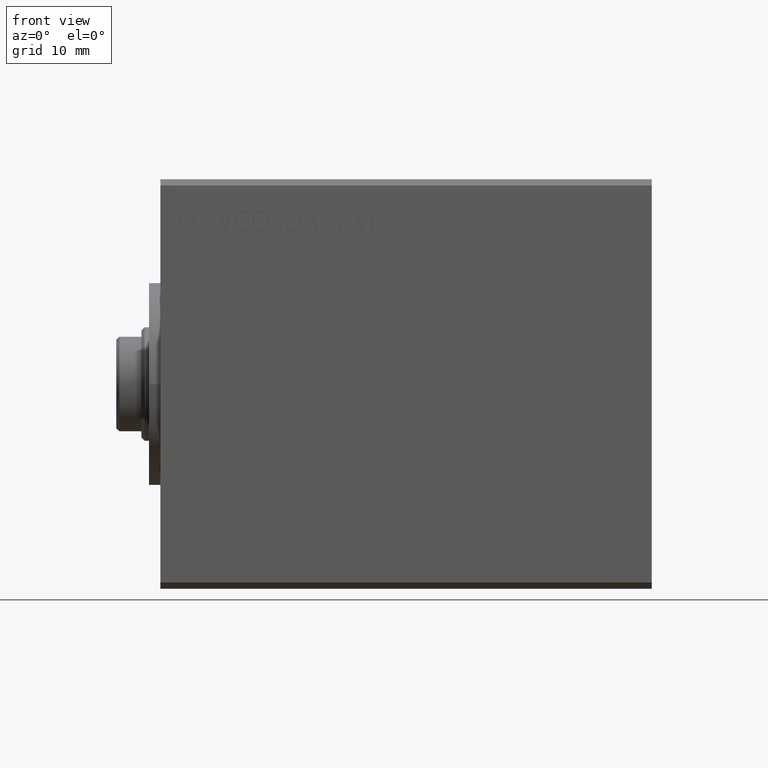
[diagram: clean part render]
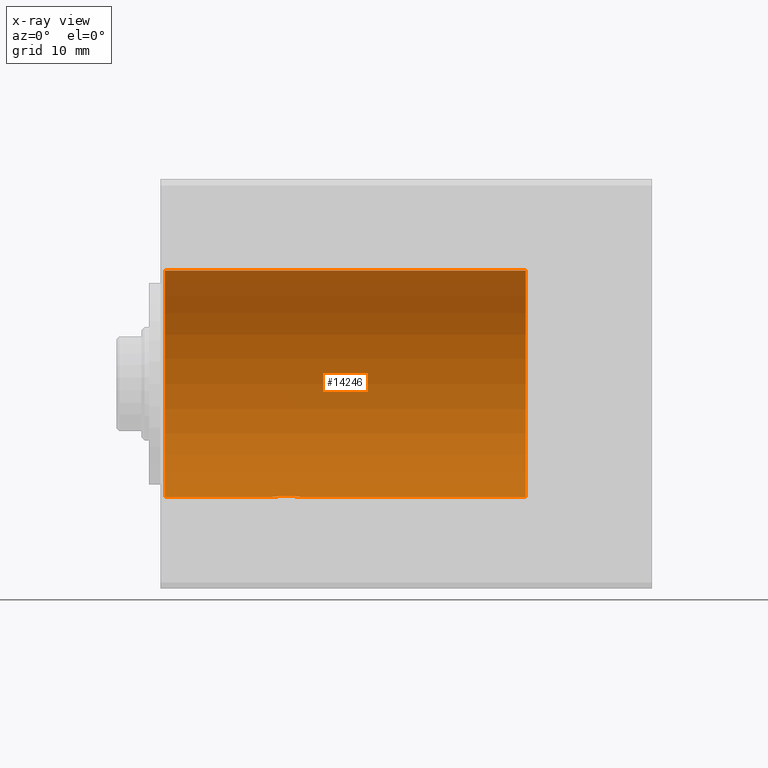
[diagram: x-ray — body ghosted, one internal face saturated and labeled with its STEP entity id]
A machine part, front view, then the same camera in x-ray: the body is ghosted and one INTERNAL B-rep face — a face not visible from any outside direction — is saturated and labeled: STEP entity #14246.
In plain terms, the highlighted cylindrical surface (partial cylindrical patch) has radius 18 mm, axis along (-1, -0, -0).
Its self-contained STEP definition (entity closure, byte-faithful):
#3 = AXIS2_PLACEMENT_3D ( 'NONE', #34715, #3695, #40977 ) ;
#2449 = EDGE_CURVE ( 'NONE', #2757, #35912, #13355, .T. ) ;
#2606 = VECTOR ( 'NONE', #34075, 1000.000000000000000 ) ;
#2691 = VERTEX_POINT ( 'NONE', #36314 ) ;
#2757 = VERTEX_POINT ( 'NONE', #10832 ) ;
#2772 = EDGE_CURVE ( 'NONE', #35912, #2691, #23535, .T. ) ;
#2830 = VECTOR ( 'NONE', #17168, 1000.000000000000000 ) ;
#3527 = CARTESIAN_POINT ( 'NONE',  ( 20.36114966365938628, 2.732113673523619557, -17.79148168512715600 ) ) ;
#3695 = DIRECTION ( 'NONE',  ( -1.000000000000000000, 0.000000000000000000, 0.000000000000000000 ) ) ;
#3702 = B_SPLINE_CURVE_WITH_KNOTS ( 'NONE', 3,
 ( #29438, #43044, #36783, #26091, #36571, #14807, #28428, #39699, #9117, #19621, #36360, #5768, #19415, #11445, #17384, #37455, #33436, #16489, #3527, #20067, #10441, #6870, #41251, #9775, #17166, #26750, #37233, #43923, #6421, #33654, #16716, #40800, #24301, #23847 ),
 .UNSPECIFIED., .F., .F.,
 ( 4, 2, 2, 2, 2, 2, 2, 2, 2, 2, 2, 2, 2, 2, 2, 2, 4 ),
 ( 5.711671780902728217E-19, 0.0005381477574346578505, 0.001076295514869315267, 0.001614443272303972684, 0.002152591029738629667, 0.002690738787173286867, 0.003228886544607944501, 0.003767034302042601701, 0.004305182059477259335, 0.004843329816911916968, 0.005381477574346573735, 0.005919625331781231369, 0.006457773089215889002, 0.006995920846650545769, 0.007534068604085203402, 0.008072216361519859301, 0.008610364118954516935 ),
 .UNSPECIFIED. ) ;
#4515 = ORIENTED_EDGE ( 'NONE', *, *, #17997, .F. ) ;
#4787 = LINE ( 'NONE', #42092, #6030 ) ;
#5768 = CARTESIAN_POINT ( 'NONE',  ( 18.62142115205747217, 2.386358860823109662, -17.84140017713428605 ) ) ;
#5958 = EDGE_CURVE ( 'NONE', #38400, #20330, #3702, .T. ) ;
#6030 = VECTOR ( 'NONE', #28483, 1000.000000000000000 ) ;
#6421 = CARTESIAN_POINT ( 'NONE',  ( 22.47148302953270971, 1.219309543251648531, -17.95942836737981096 ) ) ;
#6670 = VERTEX_POINT ( 'NONE', #42300 ) ;
#6870 = CARTESIAN_POINT ( 'NONE',  ( 21.21890378345132433, 2.471701056507153105, -17.82962573749357205 ) ) ;
#7279 = CARTESIAN_POINT ( 'NONE',  ( 58.00000000000000000, 2.204364238465235033E-15, -18.00000000000000000 ) ) ;
#9117 = CARTESIAN_POINT ( 'NONE',  ( 17.92919909286304048, 1.818341513583773272, -17.90837395452346570 ) ) ;
#9775 = CARTESIAN_POINT ( 'NONE',  ( 21.67719491423088485, 2.186679173985834890, -17.86696660552680527 ) ) ;
#10441 = CARTESIAN_POINT ( 'NONE',  ( 20.88562117720556088, 2.609733257736424061, -17.80994532207485648 ) ) ;
#10832 = CARTESIAN_POINT ( 'NONE',  ( 58.00000000000000000, 0.000000000000000000, 18.00000000000000000 ) ) ;
#10889 = CARTESIAN_POINT ( 'NONE',  ( 58.00000000000000000, 0.000000000000000000, 0.000000000000000000 ) ) ;
#11102 = DIRECTION ( 'NONE',  ( -1.000000000000000000, -0.000000000000000000, -0.000000000000000000 ) ) ;
#11445 = CARTESIAN_POINT ( 'NONE',  ( 19.11193301719066540, 2.608813160784039020, -17.81007848933809257 ) ) ;
#12390 = ORIENTED_EDGE ( 'NONE', *, *, #5958, .T. ) ;
#13126 = CARTESIAN_POINT ( 'NONE',  ( 58.00000000000000000, 0.000000000000000000, 18.00000000000000000 ) ) ;
#13355 = LINE ( 'NONE', #13126, #2830 ) ;
#13548 = LINE ( 'NONE', #7279, #2606 ) ;
#14246 = ADVANCED_FACE ( 'NONE', ( #14689 ), #28086, .F. ) ;
#14689 = FACE_OUTER_BOUND ( 'NONE', #37663, .T. ) ;
#14807 = CARTESIAN_POINT ( 'NONE',  ( 17.52909139156739826, 1.220489038523798087, -17.95934889756896169 ) ) ;
#15544 = ORIENTED_EDGE ( 'NONE', *, *, #30266, .F. ) ;
#16489 = CARTESIAN_POINT ( 'NONE',  ( 20.17862586188583407, 2.750067244739982542, -17.78867983168129641 ) ) ;
#16716 = CARTESIAN_POINT ( 'NONE',  ( 22.66149708591123968, 0.7150711363851948166, -17.98665761577569455 ) ) ;
#17166 = CARTESIAN_POINT ( 'NONE',  ( 21.81633170969228530, 2.072745225415206338, -17.88072528124705229 ) ) ;
#17168 = DIRECTION ( 'NONE',  ( -1.000000000000000000, -0.000000000000000000, -0.000000000000000000 ) ) ;
#17384 = CARTESIAN_POINT ( 'NONE',  ( 19.28554406745295680, 2.661735011242458704, -17.80214719814085100 ) ) ;
#17997 = EDGE_CURVE ( 'NONE', #2757, #6670, #43259, .T. ) ;
#18133 = EDGE_CURVE ( 'NONE', #6670, #20330, #13548, .T. ) ;
#18298 = DIRECTION ( 'NONE',  ( 0.000000000000000000, 0.000000000000000000, 1.000000000000000000 ) ) ;
#19415 = CARTESIAN_POINT ( 'NONE',  ( 18.78109890390195247, 2.471608624310707381, -17.82963692037771963 ) ) ;
#19621 = CARTESIAN_POINT ( 'NONE',  ( 18.18256145699374215, 2.071593444529275629, -17.88084797082229827 ) ) ;
#20067 = CARTESIAN_POINT ( 'NONE',  ( 20.71406291389934751, 2.661764144248994768, -17.80214249234233037 ) ) ;
#20330 = VERTEX_POINT ( 'NONE', #38363 ) ;
#20335 = CARTESIAN_POINT ( 'NONE',  ( 17.24999999999999645, 5.006587671553462360E-16, -18.00000000000000000 ) ) ;
#21642 = CARTESIAN_POINT ( 'NONE',  ( 58.00000000000000000, 0.000000000000000000, 0.000000000000000000 ) ) ;
#22176 = CARTESIAN_POINT ( 'NONE',  ( 0.7000000000000963229, 0.000000000000000000, 18.00000000000000000 ) ) ;
#22474 = ORIENTED_EDGE ( 'NONE', *, *, #2772, .T. ) ;
#23535 = CIRCLE ( 'NONE', #3, 18.00000000000000000 ) ;
#23847 = CARTESIAN_POINT ( 'NONE',  ( 22.74999999999999645, 2.204364158088119303E-15, -18.00000000000000000 ) ) ;
#24301 = CARTESIAN_POINT ( 'NONE',  ( 22.74999999999999289, 0.1796147303005707907, -18.00000000000000000 ) ) ;
#25606 = ORIENTED_EDGE ( 'NONE', *, *, #2449, .T. ) ;
#26091 = CARTESIAN_POINT ( 'NONE',  ( 17.33791835775513945, 0.7127408076138993520, -17.98674456641384722 ) ) ;
#26750 = CARTESIAN_POINT ( 'NONE',  ( 22.07259838126704565, 1.816499270323127080, -17.90857168380059505 ) ) ;
#28086 = CYLINDRICAL_SURFACE ( 'NONE', #30997, 18.00000000000000000 ) ;
#28312 = DIRECTION ( 'NONE',  ( 0.000000000000000000, 0.000000000000000000, 1.000000000000000000 ) ) ;
#28428 = CARTESIAN_POINT ( 'NONE',  ( 17.61359623481490289, 1.378350709743649150, -17.94777491787985824 ) ) ;
#28483 = DIRECTION ( 'NONE',  ( -1.000000000000000000, -0.000000000000000000, -0.000000000000000000 ) ) ;
#29438 = CARTESIAN_POINT ( 'NONE',  ( 17.24999999999999645, 5.006587671553462360E-16, -18.00000000000000000 ) ) ;
#30266 = EDGE_CURVE ( 'NONE', #38400, #2691, #4787, .T. ) ;
#30997 = AXIS2_PLACEMENT_3D ( 'NONE', #10889, #11102, #28312 ) ;
#33436 = CARTESIAN_POINT ( 'NONE',  ( 19.81930959685859861, 2.749932367775400621, -17.78870068266138915 ) ) ;
#33654 = CARTESIAN_POINT ( 'NONE',  ( 22.60941267746853001, 0.8865154291941319542, -17.97892859541724420 ) ) ;
#34075 = DIRECTION ( 'NONE',  ( -1.000000000000000000, -0.000000000000000000, -0.000000000000000000 ) ) ;
#34715 = CARTESIAN_POINT ( 'NONE',  ( 0.7000000000000963229, 0.000000000000000000, 0.000000000000000000 ) ) ;
#35230 = DIRECTION ( 'NONE',  ( -1.000000000000000000, 0.000000000000000000, 0.000000000000000000 ) ) ;
#35847 = ORIENTED_EDGE ( 'NONE', *, *, #18133, .F. ) ;
#35912 = VERTEX_POINT ( 'NONE', #22176 ) ;
#36314 = CARTESIAN_POINT ( 'NONE',  ( 0.7000000000000963229, 2.204364238465235033E-15, -18.00000000000000000 ) ) ;
#36360 = CARTESIAN_POINT ( 'NONE',  ( 18.32085526121134933, 2.185328624903336792, -17.86713764693310935 ) ) ;
#36571 = CARTESIAN_POINT ( 'NONE',  ( 17.39093391971545444, 0.8875567773904456947, -17.97887786500250229 ) ) ;
#36783 = CARTESIAN_POINT ( 'NONE',  ( 17.26788620475838343, 0.3608771794746745143, -17.99724276709048354 ) ) ;
#37233 = CARTESIAN_POINT ( 'NONE',  ( 22.18616383140507509, 1.677868181300077310, -17.92225051336022190 ) ) ;
#37455 = CARTESIAN_POINT ( 'NONE',  ( 19.64068410283403310, 2.732429804344361113, -17.79143348633489552 ) ) ;
#37663 = EDGE_LOOP ( 'NONE', ( #35847, #4515, #25606, #22474, #15544, #12390 ) ) ;
#38363 = CARTESIAN_POINT ( 'NONE',  ( 22.74999999999999645, 2.204364158088119303E-15, -18.00000000000000000 ) ) ;
#38400 = VERTEX_POINT ( 'NONE', #20335 ) ;
#39697 = AXIS2_PLACEMENT_3D ( 'NONE', #21642, #35230, #18298 ) ;
#39699 = CARTESIAN_POINT ( 'NONE',  ( 17.81319912741631839, 1.677103322162262211, -17.92232684750281990 ) ) ;
#40800 = CARTESIAN_POINT ( 'NONE',  ( 22.73199429886439304, 0.3620781951149182332, -17.99722418313044869 ) ) ;
#40977 = DIRECTION ( 'NONE',  ( 0.000000000000000000, 0.000000000000000000, -1.000000000000000000 ) ) ;
#41251 = CARTESIAN_POINT ( 'NONE',  ( 21.37954139879573390, 2.385668484780322895, -17.84148669180007829 ) ) ;
#42092 = CARTESIAN_POINT ( 'NONE',  ( 58.00000000000000000, 2.204364238465235033E-15, -18.00000000000000000 ) ) ;
#42300 = CARTESIAN_POINT ( 'NONE',  ( 58.00000000000000000, 2.204364238465235033E-15, -18.00000000000000000 ) ) ;
#43044 = CARTESIAN_POINT ( 'NONE',  ( 17.24999999999999645, 0.1819857089317282184, -18.00000000000000711 ) ) ;
#43259 = CIRCLE ( 'NONE', #39697, 18.00000000000000000 ) ;
#43923 = CARTESIAN_POINT ( 'NONE',  ( 22.38525969057592491, 1.380250028102353976, -17.94762421484757908 ) ) ;